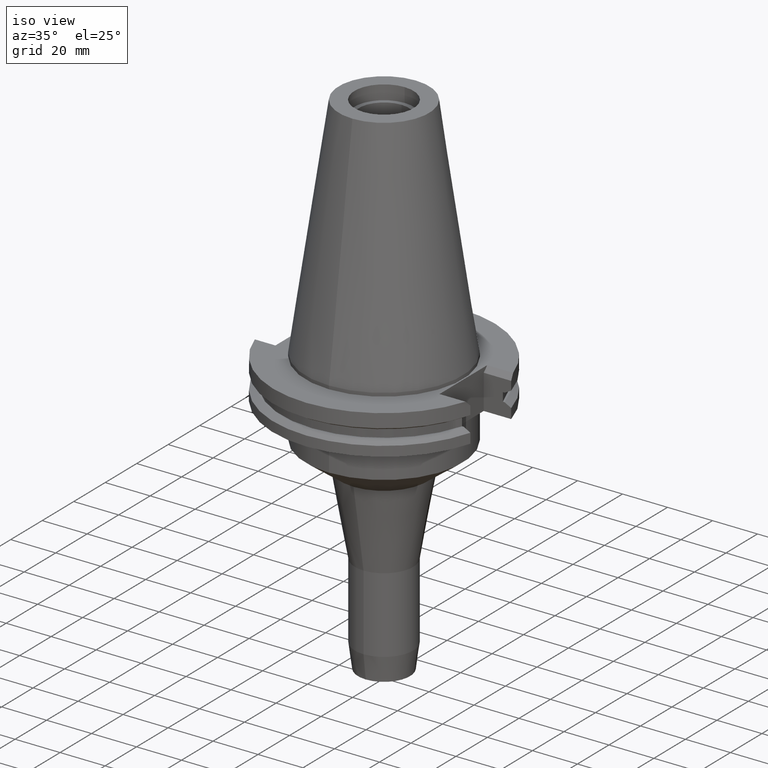
[diagram: clean part render]
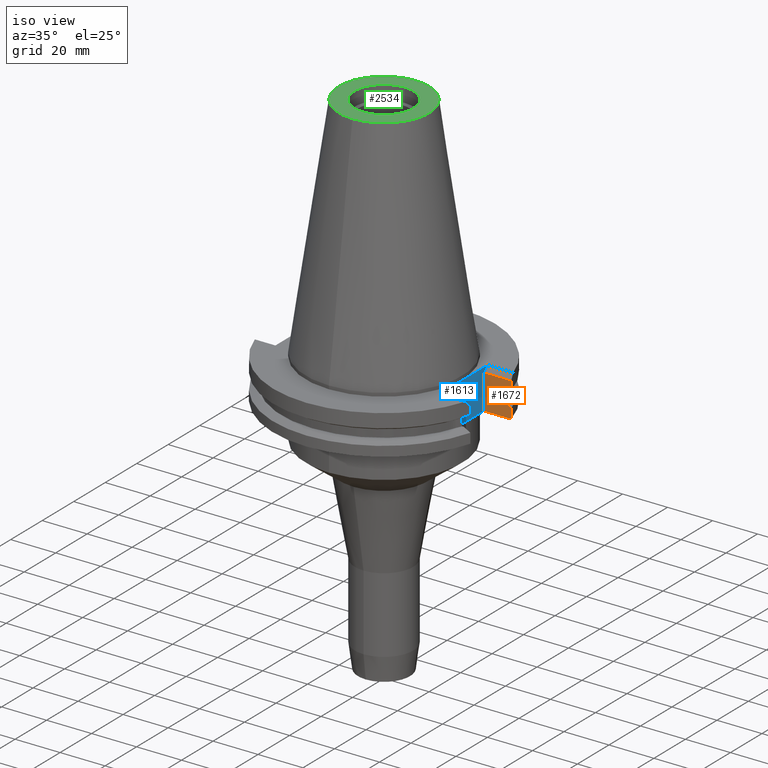
[diagram: same view with three faces highlighted in distinct colors, each labeled with its STEP entity id]
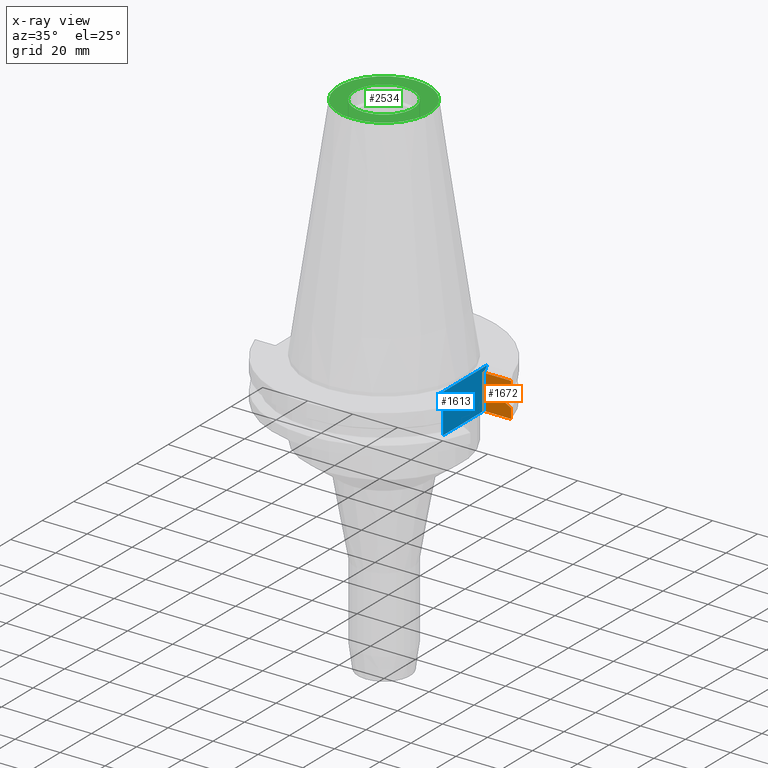
[diagram: x-ray of the same camera — body ghosted, the three highlighted faces saturated]
A machine part, iso view with three faces highlighted in distinct colors.
The next image is the same camera in x-ray (body ghosted, the three faces saturated) — at least one of them is partly hidden behind the body in this view.
Their STEP definitions:

[orange] entity #1672 — the highlighted planar face has unit normal (0, 1, 0).
#166=DIRECTION('',(0.E0,0.E0,-1.E0));
#167=VECTOR('',#166,1.535E1);
#168=CARTESIAN_POINT('',(3.527E1,1.2955E1,-3.7E0));
#169=LINE('',#168,#167);
#173=DIRECTION('',(1.E0,1.469781941986E-14,0.E0));
#174=VECTOR('',#173,1.220671146204E1);
#175=CARTESIAN_POINT('',(3.527E1,1.2955E1,-1.905E1));
#176=LINE('',#175,#174);
#235=DIRECTION('',(1.E0,-3.905892970804E-13,4.274782862491E-13));
#236=VECTOR('',#235,8.186200530381E-1);
#237=CARTESIAN_POINT('',(4.376795631509E1,1.2955E1,-1.30475E1));
#238=LINE('',#237,#236);
#250=DIRECTION('',(-1.E0,-1.469781941986E-14,0.E0));
#251=VECTOR('',#250,1.220671146204E1);
#252=CARTESIAN_POINT('',(4.747671146204E1,1.2955E1,-3.7E0));
#253=LINE('',#252,#251);
#264=DIRECTION('',(-2.258389479162E-13,-3.551499584166E-14,1.E0));
#265=VECTOR('',#264,3.901333230925E0);
#266=CARTESIAN_POINT('',(4.747671146204E1,1.2955E1,-7.601333230925E0));
#267=LINE('',#266,#265);
#351=DIRECTION('',(1.341459893288E-13,4.808244798230E-14,1.E0));
#352=VECTOR('',#351,4.396333230921E0);
#353=CARTESIAN_POINT('',(4.747671146204E1,1.2955E1,-1.905E1));
#354=LINE('',#353,#352);
#365=CARTESIAN_POINT('',(4.747671146204E1,1.2955E1,-1.465366676908E1));
#366=CARTESIAN_POINT('',(4.715593427836E1,1.2955E1,-1.447499824729E1));
#367=CARTESIAN_POINT('',(4.651414584904E1,1.2955E1,-1.411780078678E1));
#368=CARTESIAN_POINT('',(4.555077636708E1,1.2955E1,-1.358239409642E1));
#369=CARTESIAN_POINT('',(4.490806163991E1,1.2955E1,-1.322573823301E1));
#370=CARTESIAN_POINT('',(4.458657636813E1,1.2955E1,-1.30475E1));
#440=DIRECTION('',(0.E0,0.E0,1.E0));
#441=VECTOR('',#440,3.84E0);
#442=CARTESIAN_POINT('',(4.376795631509E1,1.2955E1,-1.30475E1));
#443=LINE('',#442,#441);
#454=DIRECTION('',(1.E0,-2.907720322708E-13,-1.032891696723E-12));
#455=VECTOR('',#454,8.186200530384E-1);
#456=CARTESIAN_POINT('',(4.376795631509E1,1.2955E1,-9.2075E0));
#457=LINE('',#456,#455);
#493=CARTESIAN_POINT('',(4.458657636813E1,1.2955E1,-9.207500000001E0));
#494=CARTESIAN_POINT('',(4.490806163993E1,1.2955E1,-9.029261766981E0));
#495=CARTESIAN_POINT('',(4.555077636711E1,1.2955E1,-8.672605903566E0));
#496=CARTESIAN_POINT('',(4.651414584907E1,1.2955E1,-8.137199213206E0));
#497=CARTESIAN_POINT('',(4.715593427837E1,1.2955E1,-7.780001752702E0));
#498=CARTESIAN_POINT('',(4.747671146204E1,1.2955E1,-7.601333230925E0));
#1320=CARTESIAN_POINT('',(3.527E1,1.2955E1,-1.905E1));
#1322=VERTEX_POINT('',#1320);
#1326=CARTESIAN_POINT('',(3.527E1,1.2955E1,-3.7E0));
#1327=VERTEX_POINT('',#1326);
#1328=CARTESIAN_POINT('',(4.747671146204E1,1.2955E1,-1.905E1));
#1329=VERTEX_POINT('',#1328);
#1420=CARTESIAN_POINT('',(4.747671146204E1,1.2955E1,-3.7E0));
#1421=VERTEX_POINT('',#1420);
#1422=CARTESIAN_POINT('',(4.747671146204E1,1.2955E1,-7.601333230925E0));
#1423=VERTEX_POINT('',#1422);
#1424=VERTEX_POINT('',#493);
#1425=CARTESIAN_POINT('',(4.376795631509E1,1.2955E1,-9.2075E0));
#1426=VERTEX_POINT('',#1425);
#1427=CARTESIAN_POINT('',(4.376795631509E1,1.2955E1,-1.30475E1));
#1428=VERTEX_POINT('',#1427);
#1429=CARTESIAN_POINT('',(4.458657636813E1,1.2955E1,-1.30475E1));
#1430=VERTEX_POINT('',#1429);
#1431=VERTEX_POINT('',#365);
#1647=CARTESIAN_POINT('',(3.527E1,1.2955E1,-1.905E1));
#1648=DIRECTION('',(0.E0,1.E0,0.E0));
#1649=DIRECTION('',(0.E0,0.E0,1.E0));
#1650=AXIS2_PLACEMENT_3D('',#1647,#1648,#1649);
#1651=PLANE('',#1650);
#1652=ORIENTED_EDGE('',*,*,#1620,.F.);
#1653=ORIENTED_EDGE('',*,*,#1609,.F.);
#1655=ORIENTED_EDGE('',*,*,#1654,.F.);
#1657=ORIENTED_EDGE('',*,*,#1656,.F.);
#1659=ORIENTED_EDGE('',*,*,#1658,.F.);
#1661=ORIENTED_EDGE('',*,*,#1660,.F.);
#1663=ORIENTED_EDGE('',*,*,#1662,.F.);
#1665=ORIENTED_EDGE('',*,*,#1664,.T.);
#1667=ORIENTED_EDGE('',*,*,#1666,.F.);
#1669=ORIENTED_EDGE('',*,*,#1668,.F.);
#1670=EDGE_LOOP('',(#1652,#1653,#1655,#1657,#1659,#1661,#1663,#1665,#1667,
#1669));
#1671=FACE_OUTER_BOUND('',#1670,.F.);
#371=B_SPLINE_CURVE_WITH_KNOTS('',3,(#365,#366,#367,#368,#369,#370),
.UNSPECIFIED.,.F.,.F.,(4,1,1,4),(0.E0,3.333333333333E-1,6.666666666667E-1,1.E0),
.UNSPECIFIED.);
#499=B_SPLINE_CURVE_WITH_KNOTS('',3,(#493,#494,#495,#496,#497,#498),
.UNSPECIFIED.,.F.,.F.,(4,1,1,4),(0.E0,3.333333333333E-1,6.666666666667E-1,1.E0),
.UNSPECIFIED.);
#1609=EDGE_CURVE('',#1327,#1322,#169,.T.);
#1620=EDGE_CURVE('',#1322,#1329,#176,.T.);
#1654=EDGE_CURVE('',#1421,#1327,#253,.T.);
#1656=EDGE_CURVE('',#1423,#1421,#267,.T.);
#1658=EDGE_CURVE('',#1424,#1423,#499,.T.);
#1660=EDGE_CURVE('',#1426,#1424,#457,.T.);
#1662=EDGE_CURVE('',#1428,#1426,#443,.T.);
#1664=EDGE_CURVE('',#1428,#1430,#238,.T.);
#1666=EDGE_CURVE('',#1431,#1430,#371,.T.);
#1668=EDGE_CURVE('',#1329,#1431,#354,.T.);
#1672=ADVANCED_FACE('',(#1671),#1651,.F.);

[blue] entity #1613 — the highlighted planar face has unit normal (1, 0, 0).
#62=DIRECTION('',(0.E0,-1.E0,0.E0));
#63=VECTOR('',#62,3.031E1);
#64=CARTESIAN_POINT('',(3.527E1,1.5155E1,-1.5E0));
#65=LINE('',#64,#63);
#138=DIRECTION('',(0.E0,-1.E0,0.E0));
#139=VECTOR('',#138,2.591E1);
#140=CARTESIAN_POINT('',(3.527E1,1.2955E1,-1.905E1));
#141=LINE('',#140,#139);
#145=DIRECTION('',(0.E0,0.E0,1.E0));
#146=VECTOR('',#145,1.535E1);
#147=CARTESIAN_POINT('',(3.527E1,-1.2955E1,-1.905E1));
#148=LINE('',#147,#146);
#152=DIRECTION('',(0.E0,-7.071067811865E-1,7.071067811865E-1));
#153=VECTOR('',#152,3.111269837221E0);
#154=CARTESIAN_POINT('',(3.527E1,-1.2955E1,-3.7E0));
#155=LINE('',#154,#153);
#159=DIRECTION('',(0.E0,-7.071067811865E-1,-7.071067811865E-1));
#160=VECTOR('',#159,3.111269837221E0);
#161=CARTESIAN_POINT('',(3.527E1,1.5155E1,-1.5E0));
#162=LINE('',#161,#160);
#166=DIRECTION('',(0.E0,0.E0,-1.E0));
#167=VECTOR('',#166,1.535E1);
#168=CARTESIAN_POINT('',(3.527E1,1.2955E1,-3.7E0));
#169=LINE('',#168,#167);
#1300=CARTESIAN_POINT('',(3.527E1,1.5155E1,-1.5E0));
#1301=CARTESIAN_POINT('',(3.527E1,-1.5155E1,-1.5E0));
#1302=VERTEX_POINT('',#1300);
#1303=VERTEX_POINT('',#1301);
#1320=CARTESIAN_POINT('',(3.527E1,1.2955E1,-1.905E1));
#1321=CARTESIAN_POINT('',(3.527E1,-1.2955E1,-1.905E1));
#1322=VERTEX_POINT('',#1320);
#1323=VERTEX_POINT('',#1321);
#1324=CARTESIAN_POINT('',(3.527E1,-1.2955E1,-3.7E0));
#1325=VERTEX_POINT('',#1324);
#1326=CARTESIAN_POINT('',(3.527E1,1.2955E1,-3.7E0));
#1327=VERTEX_POINT('',#1326);
#1595=CARTESIAN_POINT('',(3.527E1,0.E0,0.E0));
#1596=DIRECTION('',(1.E0,0.E0,0.E0));
#1597=DIRECTION('',(0.E0,0.E0,-1.E0));
#1598=AXIS2_PLACEMENT_3D('',#1595,#1596,#1597);
#1599=PLANE('',#1598);
#1601=ORIENTED_EDGE('',*,*,#1600,.T.);
#1603=ORIENTED_EDGE('',*,*,#1602,.T.);
#1605=ORIENTED_EDGE('',*,*,#1604,.T.);
#1606=ORIENTED_EDGE('',*,*,#1568,.F.);
#1608=ORIENTED_EDGE('',*,*,#1607,.T.);
#1610=ORIENTED_EDGE('',*,*,#1609,.T.);
#1611=EDGE_LOOP('',(#1601,#1603,#1605,#1606,#1608,#1610));
#1612=FACE_OUTER_BOUND('',#1611,.F.);
#1568=EDGE_CURVE('',#1302,#1303,#65,.T.);
#1600=EDGE_CURVE('',#1322,#1323,#141,.T.);
#1602=EDGE_CURVE('',#1323,#1325,#148,.T.);
#1604=EDGE_CURVE('',#1325,#1303,#155,.T.);
#1607=EDGE_CURVE('',#1302,#1327,#162,.T.);
#1609=EDGE_CURVE('',#1327,#1322,#169,.T.);
#1613=ADVANCED_FACE('',(#1612),#1599,.T.);

[green] entity #2534 — the highlighted planar face has unit normal (0, 0, 1).
#1256=CARTESIAN_POINT('',(0.E0,0.E0,1.016E2));
#1257=DIRECTION('',(0.E0,0.E0,-1.E0));
#1258=DIRECTION('',(0.E0,-1.E0,0.E0));
#1259=AXIS2_PLACEMENT_3D('',#1256,#1257,#1258);
#1264=CARTESIAN_POINT('',(0.E0,0.E0,1.016E2));
#1265=DIRECTION('',(0.E0,0.E0,-1.E0));
#1266=DIRECTION('',(0.E0,1.E0,0.E0));
#1267=AXIS2_PLACEMENT_3D('',#1264,#1265,#1266);
#1272=CARTESIAN_POINT('',(0.E0,0.E0,1.016E2));
#1273=DIRECTION('',(0.E0,0.E0,1.E0));
#1274=DIRECTION('',(0.E0,-1.E0,0.E0));
#1275=AXIS2_PLACEMENT_3D('',#1272,#1273,#1274);
#1280=CARTESIAN_POINT('',(0.E0,0.E0,1.016E2));
#1281=DIRECTION('',(0.E0,0.E0,1.E0));
#1282=DIRECTION('',(0.E0,1.E0,0.E0));
#1283=AXIS2_PLACEMENT_3D('',#1280,#1281,#1282);
#1288=CARTESIAN_POINT('',(0.E0,2.010832422387E1,1.016E2));
#1290=VERTEX_POINT('',#1288);
#1292=CARTESIAN_POINT('',(0.E0,-2.010832422388E1,1.016E2));
#1293=VERTEX_POINT('',#1292);
#1416=CARTESIAN_POINT('',(0.E0,1.3115E1,1.016E2));
#1417=VERTEX_POINT('',#1416);
#1418=CARTESIAN_POINT('',(0.E0,-1.3115E1,1.016E2));
#1419=VERTEX_POINT('',#1418);
#2521=CARTESIAN_POINT('',(0.E0,0.E0,1.016E2));
#2522=DIRECTION('',(0.E0,0.E0,1.E0));
#2523=DIRECTION('',(0.E0,1.E0,0.E0));
#2524=AXIS2_PLACEMENT_3D('',#2521,#2522,#2523);
#2525=PLANE('',#2524);
#2526=ORIENTED_EDGE('',*,*,#1512,.T.);
#2527=ORIENTED_EDGE('',*,*,#1530,.T.);
#2528=EDGE_LOOP('',(#2526,#2527));
#2529=FACE_OUTER_BOUND('',#2528,.F.);
#2530=ORIENTED_EDGE('',*,*,#2514,.T.);
#2531=ORIENTED_EDGE('',*,*,#2503,.T.);
#2532=EDGE_LOOP('',(#2530,#2531));
#2533=FACE_BOUND('',#2532,.F.);
#1260=CIRCLE('',#1259,2.010832422388E1);
#1268=CIRCLE('',#1267,2.010832422388E1);
#1276=CIRCLE('',#1275,1.3115E1);
#1284=CIRCLE('',#1283,1.3115E1);
#1512=EDGE_CURVE('',#1293,#1290,#1260,.T.);
#1530=EDGE_CURVE('',#1290,#1293,#1268,.T.);
#2503=EDGE_CURVE('',#1417,#1419,#1284,.T.);
#2514=EDGE_CURVE('',#1419,#1417,#1276,.T.);
#2534=ADVANCED_FACE('',(#2529,#2533),#2525,.T.);